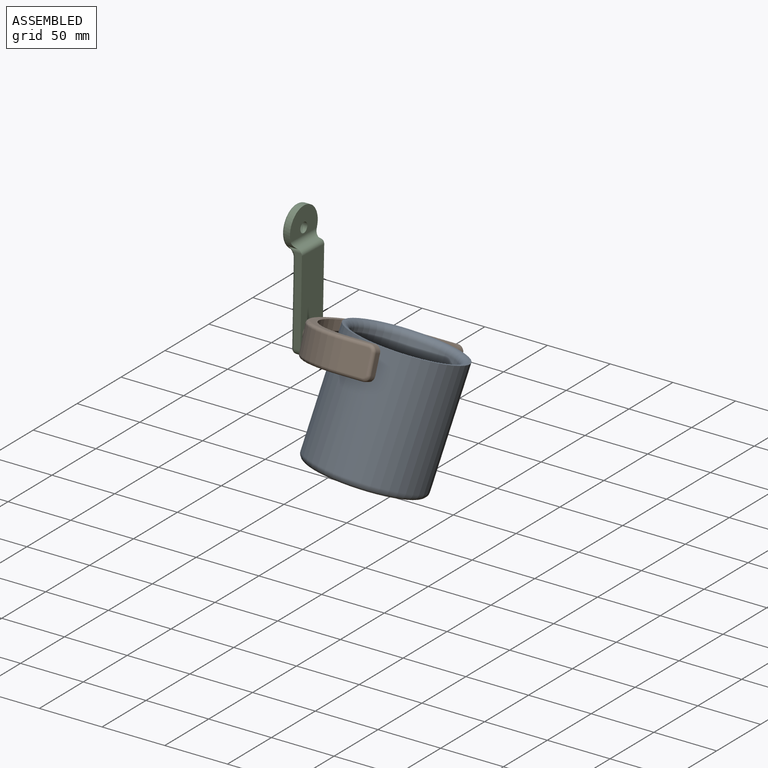
[diagram: assembled view]
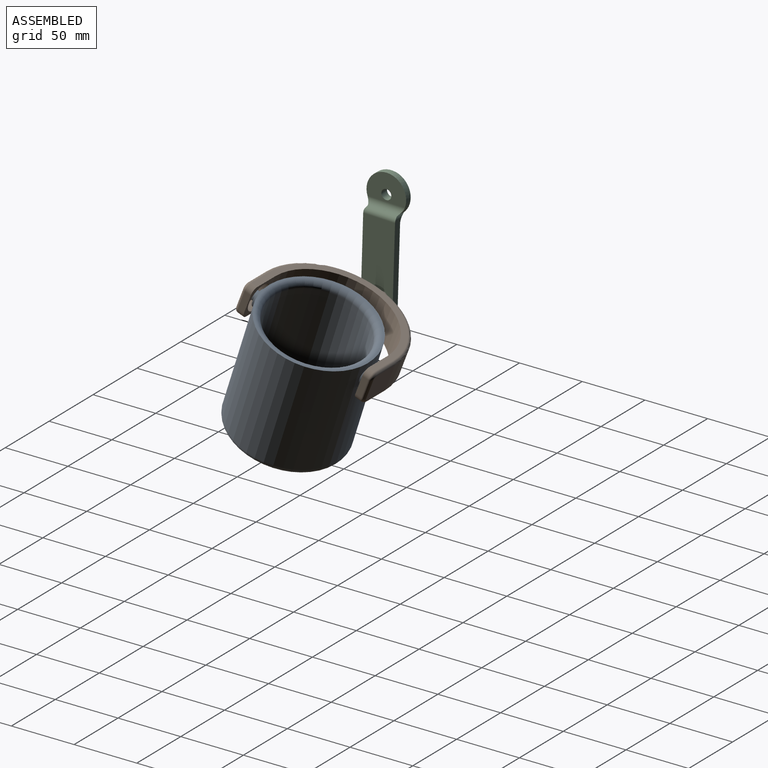
[diagram: assembled view, second angle]
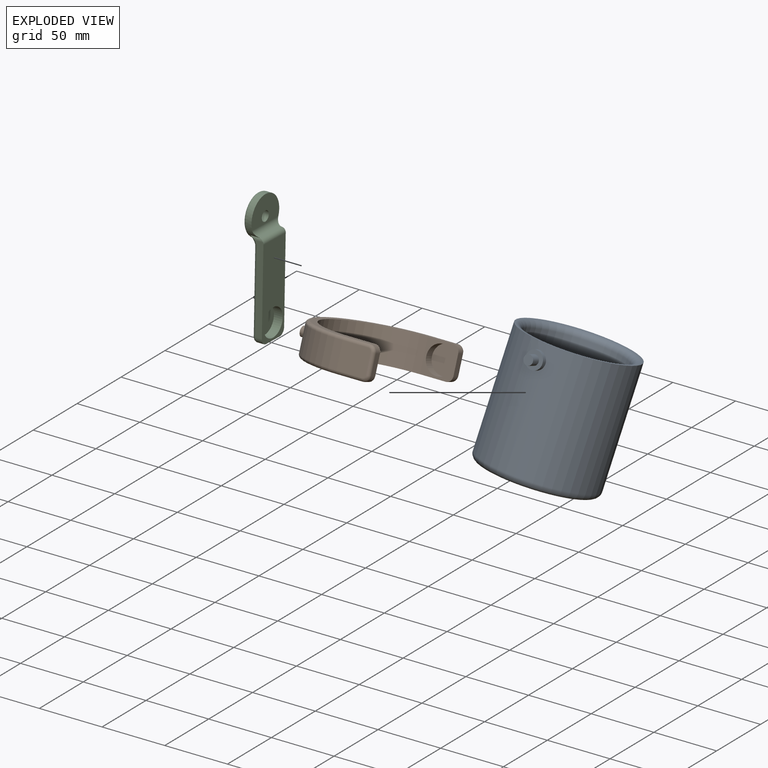
[diagram: exploded view]
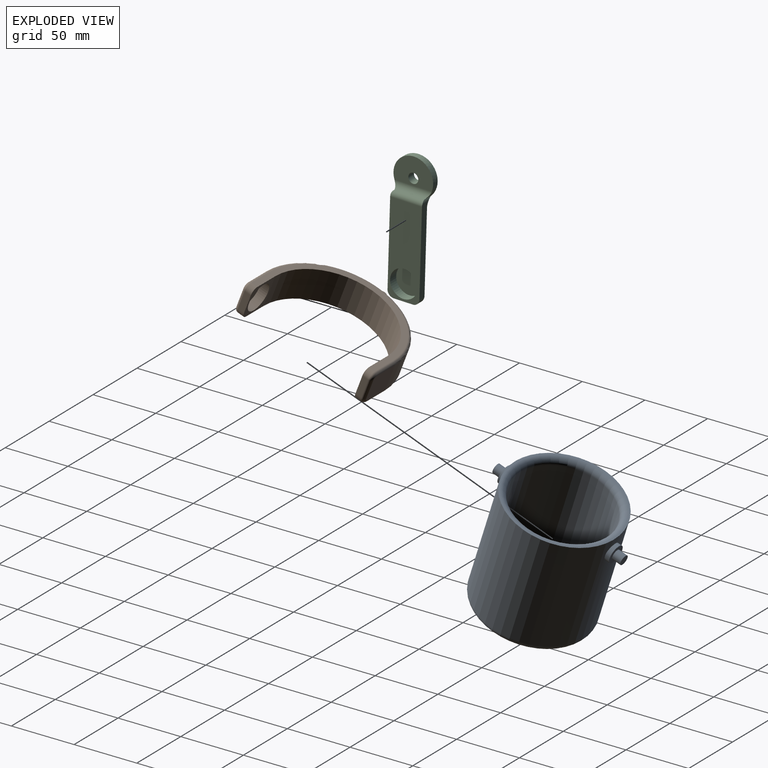
[diagram: exploded view, second angle]
ASSEMBLY  parts=3 mates=2
PART A: 15 faces, bbox 96.2x109.2x95.3 mm
  f0: cylinder r=44.45mm len=90.17mm, axis (0,0,-1), area 24874.3mm2, adj f3,f5,f7,f9
  f1: plane 76.2x76.2mm, normal (0,0,1), area 4560.4mm2, adj f2
  f2: cylinder r=38.1mm len=83.82mm, axis (0,0,-1), area 20065.6mm2, adj f1,f6
  f3: plane 88.9x88.9mm, normal (0,0,1), area 349.6mm2, adj f0,f6
  f4: plane 78.74x78.74mm, normal (0,0,-1), area 4869.5mm2, adj f5
  f5: torus R=39.37mm, axis (0,0,1), area 2136.1mm2, adj f0,f4
  f6: torus R=43.18mm, axis (0,0,1), area 2002.8mm2, adj f2,f3
  f7: cylinder r=6.99mm len=13.97mm, axis (0,1,0), area 151.4mm2, adj f0,f8
  f8: plane 13.97x13.97mm, normal (0,-1,0), area 107.7mm2, adj f7,f11
  f9: cylinder r=6.99mm len=13.97mm, axis (0,-1,0), area 151.5mm2, adj f0,f10
  f10: plane 13.97x13.97mm, normal (0,1,0), area 107.7mm2, adj f9,f13
  f11: cylinder r=3.81mm len=7.62mm, axis (0,1,0), area 167.2mm2, adj f8,f12
  f12: plane 7.62x7.62mm, normal (0,-1,0), area 45.6mm2, adj f11
  f13: cylinder r=3.81mm len=7.62mm, axis (0,-1,0), area 167.2mm2, adj f10,f14
  f14: plane 7.62x7.62mm, normal (0,1,0), area 45.6mm2, adj f13
PART B: 34 faces, bbox 119.6x91.2x26.2 mm
  f0: cylinder r=55.25mm len=110.49mm, axis (0,0,-1), area 3372.8mm2, adj f1,f2,f14,f22,f33
  f1: plane 22.86x20.32mm, normal (-1,0,0), area 461.7mm2, adj f0,f23,f25,f27,f29,f31
  f2: plane 22.86x20.32mm, normal (1,0,0), area 461.7mm2, adj f0,f24,f26,f28,f30,f32
  f3: plane 15.24x5.08mm, normal (0,1,0), area 77.4mm2, adj f4,f19,f21,f28
  f4: plane 25.4x25.4mm, normal (-1,0,0), area 259.3mm2, adj f3,f5,f8,f9,f10,f19,f21
  f5: cylinder r=47.62mm len=95.25mm, axis (0,0,-1), area 3800.3mm2, adj f4,f6,f8,f9
  f6: plane 25.4x25.4mm, normal (1,0,0), area 259.3mm2, adj f5,f7,f8,f9,f12,f18,f20
  f7: plane 15.24x5.08mm, normal (0,1,0), area 77.4mm2, adj f6,f18,f20,f27
  f8: plane 105.41x73.03mm, normal (0,0,1), area 1007mm2, adj f4,f5,f6,f20,f21,f31,f32,f33
  f9: plane 105.41x73.03mm, normal (0,0,-1), area 1007mm2, adj f4,f5,f6,f18,f19,f22,f23,f24
  f10: cylinder r=10.92mm len=21.84mm, axis (-1,0,0), area 479.3mm2, adj f4,f11
  f11: plane 21.84x21.84mm, normal (-1,0,0), area 374.8mm2, adj f10
  f12: cylinder r=10.92mm len=21.84mm, axis (1,0,0), area 479.3mm2, adj f6,f13
  f13: plane 21.84x21.84mm, normal (1,0,0), area 374.8mm2, adj f12
  f14: cylinder r=6.99mm len=13.97mm, axis (0,1,0), area 149mm2, adj f0,f15
  f15: plane 13.97x13.97mm, normal (0,-1,0), area 107.7mm2, adj f14,f16
  f16: cylinder r=3.81mm len=7.62mm, axis (0,1,0), area 167.2mm2, adj f15,f17
  f17: plane 7.62x7.62mm, normal (0,-1,0), area 45.6mm2, adj f16
  f18: cylinder r=5.08mm len=5.08mm, axis (-1,0,0), area 40.5mm2, adj f6,f7,f9,f25
  f19: cylinder r=5.08mm len=5.08mm, axis (-1,0,0), area 40.5mm2, adj f3,f4,f9,f26
  f20: cylinder r=5.08mm len=5.08mm, axis (1,0,0), area 40.5mm2, adj f6,f7,f8,f29
  f21: cylinder r=5.08mm len=5.08mm, axis (1,0,0), area 40.5mm2, adj f3,f4,f8,f30
  f22: torus R=52.7mm, axis (0,0,1), area 680.9mm2, adj f0,f9,f23,f24
  f23: cylinder r=2.54mm len=20.32mm, axis (0,-1,0), area 81.1mm2, adj f1,f9,f22,f25
  f24: cylinder r=2.54mm len=20.32mm, axis (0,1,0), area 81.1mm2, adj f2,f9,f22,f26
  f25: torus R=2.54mm, axis (-1,0,0), area 26.1mm2, adj f1,f18,f23,f27
  f26: torus R=2.54mm, axis (-1,0,0), area 26.1mm2, adj f2,f19,f24,f28
  f27: cylinder r=2.54mm len=15.24mm, axis (0,0,-1), area 60.8mm2, adj f1,f7,f25,f29
  f28: cylinder r=2.54mm len=15.24mm, axis (0,0,1), area 60.8mm2, adj f2,f3,f26,f30
  f29: torus R=2.54mm, axis (-1,0,0), area 26.1mm2, adj f1,f20,f27,f31
  f30: torus R=2.54mm, axis (-1,0,0), area 26.1mm2, adj f2,f21,f28,f32
  f31: cylinder r=2.54mm len=20.32mm, axis (0,1,0), area 81.1mm2, adj f1,f8,f29,f33
  f32: cylinder r=2.54mm len=20.32mm, axis (0,-1,0), area 81.1mm2, adj f2,f8,f30,f33
  f33: torus R=52.7mm, axis (0,0,1), area 680.9mm2, adj f0,f8,f31,f32
PART C: 26 faces, bbox 38.8x104.1x14 mm
  f0: plane 21.84x21.84mm, normal (0,0,1), area 374.8mm2, adj f3
  f1: plane 68.93x6.52mm, normal (-1,0,0), area 352.4mm2, adj f5,f7,f20,f21,f22,f25
  f2: plane 15.24x5.08mm, normal (0,-1,0), area 77.4mm2, adj f5,f7,f8,f18
  f3: cylinder r=10.92mm len=21.84mm, axis (0,0,-1), area 479.3mm2, adj f0,f5
  f4: plane 68.93x6.52mm, normal (1,0,0), area 352.4mm2, adj f5,f8,f15,f16,f22,f24
  f5: plane 72.39x25.4mm, normal (0,0,1), area 1452.9mm2, adj f1,f2,f3,f4,f7,f8,f22
  f6: plane 66.28x20.32mm, normal (0,0,-1), area 1306.9mm2, adj f14,f16,f17,f18,f19,f20
  f7: cylinder r=5.08mm len=5.08mm, axis (0,0,-1), area 40.5mm2, adj f1,f2,f5,f19
  f8: cylinder r=5.08mm len=5.08mm, axis (0,0,1), area 40.5mm2, adj f2,f4,f5,f17
  f9: plane 31.65x21.15mm, normal (0,0,1), area 509.2mm2, adj f10,f11,f23
  f10: cylinder r=15.82mm len=31.65mm, axis (0,0,1), area 342.7mm2, adj f9,f13,f22,f23,f24,f25
  f11: cylinder r=3.96mm len=7.93mm, axis (0,0,1), area 158.1mm2, adj f9,f12
  f12: plane 28.09x28.09mm, normal (0,0,-1), area 570.5mm2, adj f11,f13
  f13: torus R=14.05mm, axis (0,0,-1), area 266.4mm2, adj f10,f12,f14
  f14: torus R=20.4mm, axis (0,0,1), area 176.4mm2, adj f6,f13,f15,f21,f24,f25
  f15: bspline ~11x6.54mm, area 22.7mm2, adj f4,f14,f16,f24
  f16: cylinder r=2.54mm len=63.74mm, axis (0,1,0), area 254.3mm2, adj f4,f6,f15,f17
  f17: torus R=2.54mm, axis (0,0,1), area 26.1mm2, adj f6,f8,f16,f18
  f18: cylinder r=2.54mm len=15.24mm, axis (1,0,0), area 60.8mm2, adj f2,f6,f17,f19
  f19: torus R=2.54mm, axis (0,0,1), area 26.1mm2, adj f6,f7,f18,f20
  f20: cylinder r=2.54mm len=63.74mm, axis (0,-1,0), area 254.3mm2, adj f1,f6,f19,f21
  f21: bspline ~11x6.54mm, area 22.7mm2, adj f1,f14,f20,f25
  f22: cylinder r=3.81mm len=25.4mm, axis (1,0,0), area 135.9mm2, adj f1,f4,f5,f10,f23,f24,f25
  f23: cylinder r=5.08mm len=29.81mm, axis (1,0,0), area 194.9mm2, adj f9,f10,f22
  f24: cylinder r=3.81mm len=11.83mm, axis (0,0,1), area 17.9mm2, adj f4,f10,f14,f15,f22
  f25: cylinder r=3.81mm len=11.83mm, axis (0,0,1), area 17.9mm2, adj f1,f10,f14,f21,f22
PLACE A rot(axis=(0.06,0.18,0.98),178.7deg) t=(34.42,-1.89,23.31)mm
PLACE B rot(axis=(0.7,0.7,-0.13),165.2deg) t=(31.33,31.88,111.74)mm
PLACE C rot(axis=(0.57,0.59,0.57),119deg) t=(-34.74,28.11,125.14)mm fixed
MATE revolute B.f10 <-> A.f11  axis (0,0.93,-0.36) through (44.01,-23.67,119.38)mm
MATE revolute C.f3 <-> B.f14  axis (1,0,0) through (-34.06,27.35,99.75)mm
